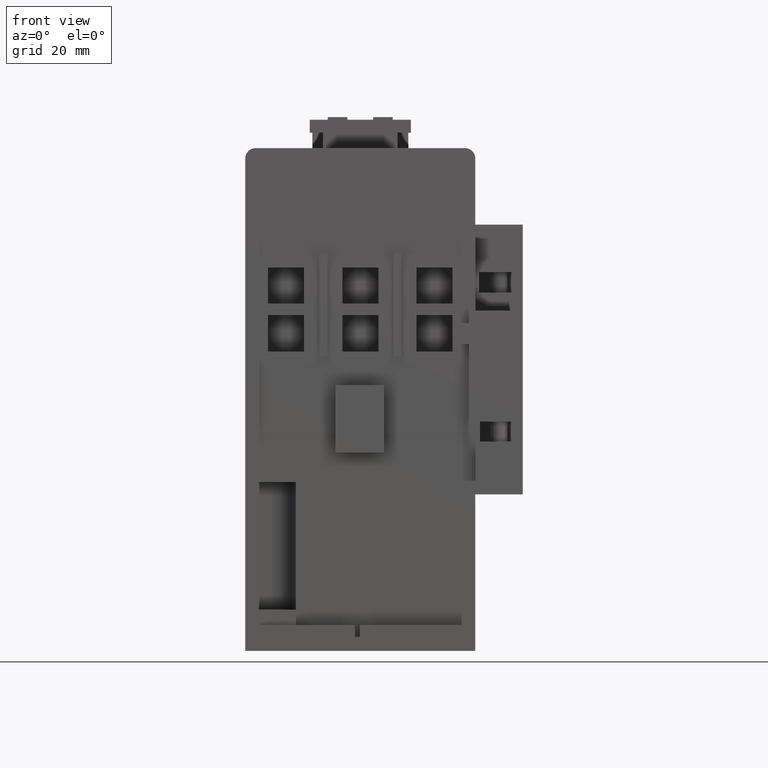
[diagram: clean part render]
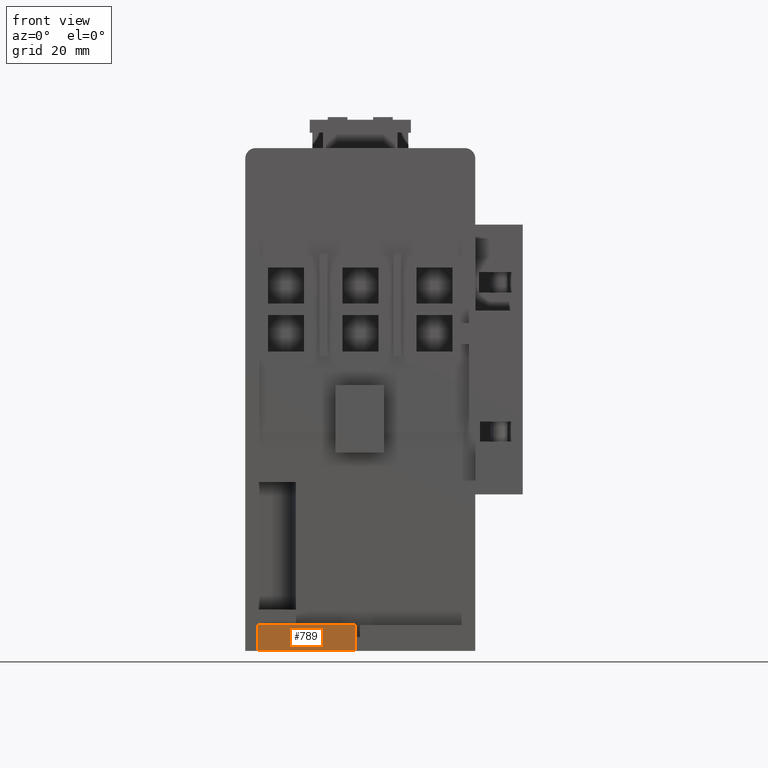
[diagram: same view with one face highlighted and labeled with its STEP entity id]
A machine part, front view. The second image highlights one B-rep face of the part: STEP entity #789.
In plain terms, the highlighted planar face has unit normal (0, -1, 0).
Its self-contained STEP definition (entity closure, byte-faithful):
#789=ADVANCED_FACE('',(#1697),#1260,.T.);
#1260=PLANE('',#9748);
#1697=FACE_OUTER_BOUND('',#2235,.T.);
#2235=EDGE_LOOP('',(#4156,#4157,#4158,#4159));
#4156=ORIENTED_EDGE('',*,*,#6049,.F.);
#4157=ORIENTED_EDGE('',*,*,#6757,.F.);
#4158=ORIENTED_EDGE('',*,*,#6758,.T.);
#4159=ORIENTED_EDGE('',*,*,#6759,.T.);
#5166=VERTEX_POINT('',#12809);
#5167=VERTEX_POINT('',#12811);
#5623=VERTEX_POINT('',#14266);
#5624=VERTEX_POINT('',#14270);
#6049=EDGE_CURVE('',#5166,#5167,#7307,.T.);
#6757=EDGE_CURVE('',#5623,#5166,#7920,.T.);
#6758=EDGE_CURVE('',#5623,#5624,#7921,.T.);
#6759=EDGE_CURVE('',#5624,#5167,#7922,.T.);
#7307=LINE('',#12810,#8418);
#7920=LINE('',#14267,#9031);
#7921=LINE('',#14269,#9032);
#7922=LINE('',#14271,#9033);
#8418=VECTOR('',#10243,1.);
#9031=VECTOR('',#11630,1.);
#9032=VECTOR('',#11633,1.);
#9033=VECTOR('',#11634,1.);
#9748=AXIS2_PLACEMENT_3D('',#14272,#11635,#11636);
#10243=DIRECTION('',(-1.,0.,0.));
#11630=DIRECTION('',(0.,0.,-1.));
#11633=DIRECTION('',(-1.,0.,0.));
#11634=DIRECTION('',(0.,0.,-1.));
#11635=DIRECTION('',(0.,-1.,0.));
#11636=DIRECTION('',(0.,0.,-1.));
#12809=CARTESIAN_POINT('',(-1.,-37.2,-4.99999999999999));
#12810=CARTESIAN_POINT('',(-1.,-37.2,-4.99999999999999));
#12811=CARTESIAN_POINT('',(-19.9,-37.2,-4.99999999999999));
#14266=CARTESIAN_POINT('',(-1.,-37.2,0.));
#14267=CARTESIAN_POINT('',(-1.,-37.2,0.));
#14269=CARTESIAN_POINT('',(-1.,-37.2,0.));
#14270=CARTESIAN_POINT('',(-19.9,-37.2,0.));
#14271=CARTESIAN_POINT('',(-19.9,-37.2,0.));
#14272=CARTESIAN_POINT('',(-1.,-37.2,0.));